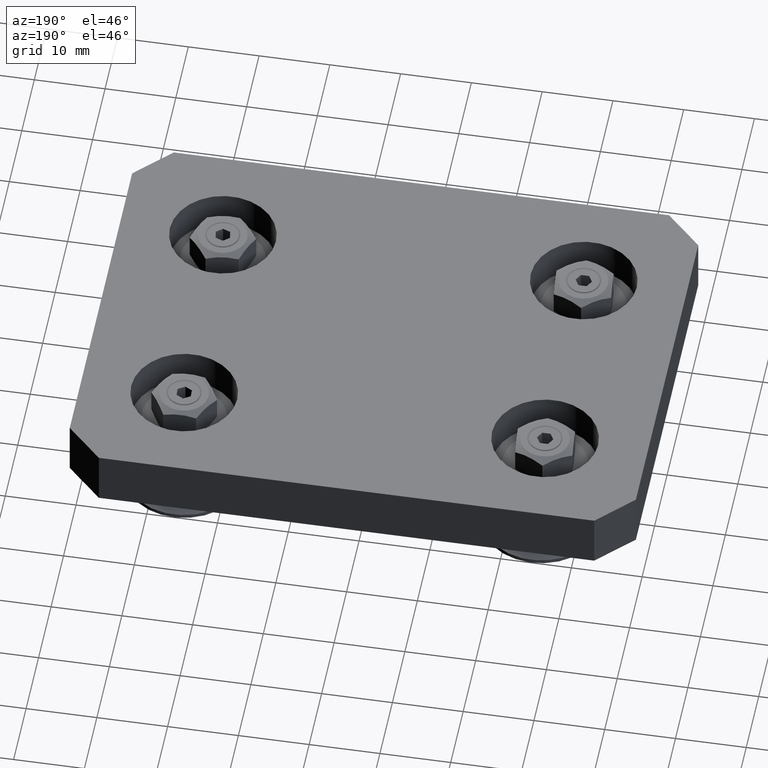
[diagram: clean part render]
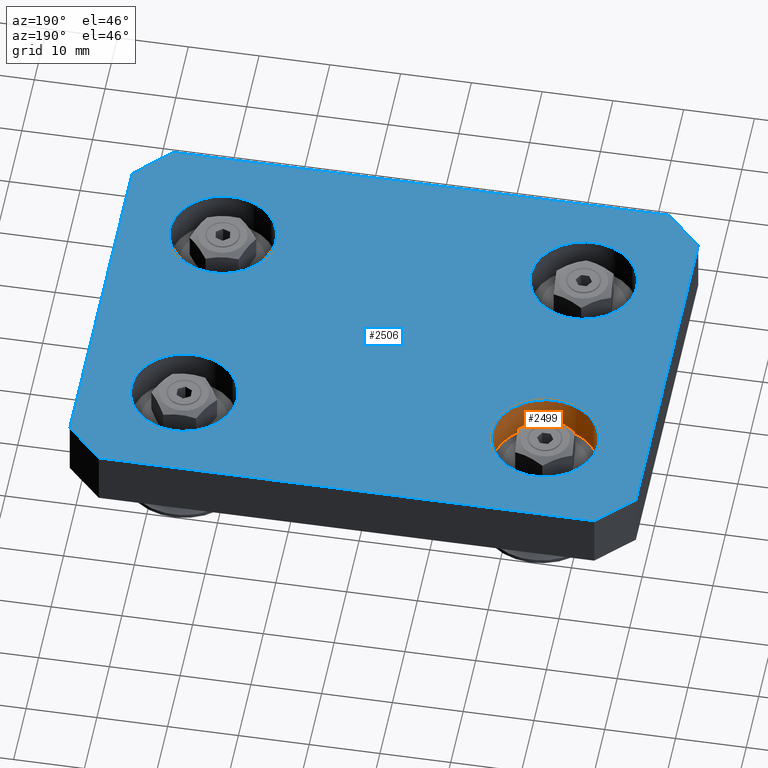
[diagram: same view with the hole feature highlighted: cylindrical wall and planar end face, labeled with their STEP entity ids]
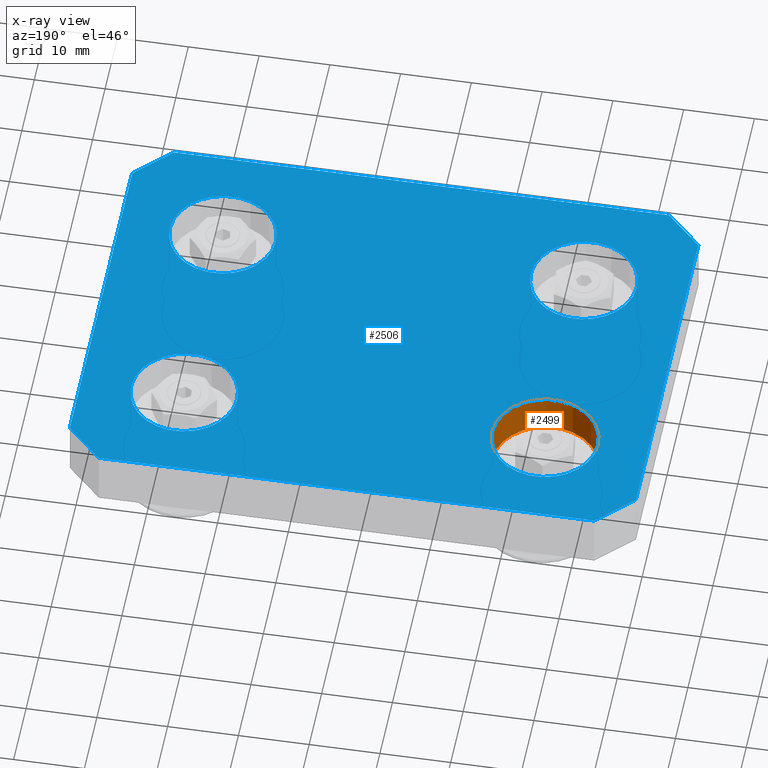
[diagram: x-ray of the same camera — body ghosted, the hole faces saturated]
A machine part, auxiliary view. The highlighted faces form one hole feature of diameter 15 mm: the cylindrical wall (entity #2499, orange) and its adjacent planar end face (entity #2506, blue) — they share a circular edge in the B-rep.
The next image is the same camera in x-ray (body ghosted, the hole faces saturated) — the bore reads through the body.
Wall:
#136=CYLINDRICAL_SURFACE('',#2874,7.5);
#216=CIRCLE('',#2872,7.5);
#218=CIRCLE('',#2875,7.5);
#354=FACE_OUTER_BOUND('',#520,.T.);
#520=EDGE_LOOP('',(#1741,#1742,#1743,#1744));
#714=LINE('',#4093,#922);
#922=VECTOR('',#3250,7.5);
#1130=VERTEX_POINT('',#4086);
#1132=VERTEX_POINT('',#4091);
#1365=EDGE_CURVE('',#1130,#1130,#216,.T.);
#1367=EDGE_CURVE('',#1132,#1132,#218,.T.);
#1368=EDGE_CURVE('',#1132,#1130,#714,.T.);
#1741=ORIENTED_EDGE('',*,*,#1367,.F.);
#1742=ORIENTED_EDGE('',*,*,#1368,.T.);
#1743=ORIENTED_EDGE('',*,*,#1365,.F.);
#1744=ORIENTED_EDGE('',*,*,#1368,.F.);
#2499=ADVANCED_FACE('',(#354),#136,.F.);
#2872=AXIS2_PLACEMENT_3D('',#4087,#3242,#3243);
#2874=AXIS2_PLACEMENT_3D('',#4090,#3246,#3247);
#2875=AXIS2_PLACEMENT_3D('',#4092,#3248,#3249);
#3242=DIRECTION('center_axis',(0.,0.,1.));
#3243=DIRECTION('ref_axis',(1.,0.,0.));
#3246=DIRECTION('center_axis',(0.,0.,1.));
#3247=DIRECTION('ref_axis',(1.,0.,0.));
#3248=DIRECTION('center_axis',(0.,0.,-1.));
#3249=DIRECTION('ref_axis',(1.,0.,0.));
#3250=DIRECTION('',(0.,0.,-1.));
#4086=CARTESIAN_POINT('',(-33.,15.5,2.5));
#4087=CARTESIAN_POINT('Origin',(-25.5,15.5,2.5));
#4090=CARTESIAN_POINT('Origin',(-25.5,15.5,5.25));
#4091=CARTESIAN_POINT('',(-33.,15.5,8.));
#4092=CARTESIAN_POINT('Origin',(-25.5,15.5,8.));
#4093=CARTESIAN_POINT('',(-33.,15.5,5.25));
End face:
#184=FACE_BOUND('',#529,.T.);
#185=FACE_BOUND('',#530,.T.);
#186=FACE_BOUND('',#531,.T.);
#187=FACE_BOUND('',#532,.T.);
#212=CIRCLE('',#2863,7.5);
#215=CIRCLE('',#2869,7.5);
#218=CIRCLE('',#2875,7.5);
#221=CIRCLE('',#2881,7.5);
#361=FACE_OUTER_BOUND('',#528,.T.);
#528=EDGE_LOOP('',(#1767,#1768,#1769,#1770,#1771,#1772,#1773,#1774));
#529=EDGE_LOOP('',(#1775));
#530=EDGE_LOOP('',(#1776));
#531=EDGE_LOOP('',(#1777));
#532=EDGE_LOOP('',(#1778));
#688=LINE('',#4013,#896);
#699=LINE('',#4043,#907);
#701=LINE('',#4047,#909);
#703=LINE('',#4052,#911);
#707=LINE('',#4058,#915);
#708=LINE('',#4061,#916);
#718=LINE('',#4108,#926);
#719=LINE('',#4110,#927);
#896=VECTOR('',#3170,10.);
#907=VECTOR('',#3193,10.);
#909=VECTOR('',#3197,10.);
#911=VECTOR('',#3201,10.);
#915=VECTOR('',#3207,10.);
#916=VECTOR('',#3210,10.);
#926=VECTOR('',#3270,10.);
#927=VECTOR('',#3273,10.);
#1104=VERTEX_POINT('',#4011);
#1105=VERTEX_POINT('',#4012);
#1118=VERTEX_POINT('',#4042);
#1119=VERTEX_POINT('',#4046);
#1120=VERTEX_POINT('',#4050);
#1121=VERTEX_POINT('',#4051);
#1122=VERTEX_POINT('',#4056);
#1123=VERTEX_POINT('',#4060);
#1126=VERTEX_POINT('',#4069);
#1129=VERTEX_POINT('',#4080);
#1132=VERTEX_POINT('',#4091);
#1135=VERTEX_POINT('',#4102);
#1329=EDGE_CURVE('',#1104,#1105,#688,.T.);
#1344=EDGE_CURVE('',#1105,#1118,#699,.T.);
#1346=EDGE_CURVE('',#1118,#1119,#701,.T.);
#1348=EDGE_CURVE('',#1120,#1121,#703,.T.);
#1352=EDGE_CURVE('',#1122,#1120,#707,.T.);
#1353=EDGE_CURVE('',#1123,#1122,#708,.T.);
#1357=EDGE_CURVE('',#1126,#1126,#212,.T.);
#1362=EDGE_CURVE('',#1129,#1129,#215,.T.);
#1367=EDGE_CURVE('',#1132,#1132,#218,.T.);
#1372=EDGE_CURVE('',#1135,#1135,#221,.T.);
#1375=EDGE_CURVE('',#1119,#1123,#718,.T.);
#1376=EDGE_CURVE('',#1121,#1104,#719,.T.);
#1767=ORIENTED_EDGE('',*,*,#1329,.F.);
#1768=ORIENTED_EDGE('',*,*,#1376,.F.);
#1769=ORIENTED_EDGE('',*,*,#1348,.F.);
#1770=ORIENTED_EDGE('',*,*,#1352,.F.);
#1771=ORIENTED_EDGE('',*,*,#1353,.F.);
#1772=ORIENTED_EDGE('',*,*,#1375,.F.);
#1773=ORIENTED_EDGE('',*,*,#1346,.F.);
#1774=ORIENTED_EDGE('',*,*,#1344,.F.);
#1775=ORIENTED_EDGE('',*,*,#1357,.T.);
#1776=ORIENTED_EDGE('',*,*,#1362,.T.);
#1777=ORIENTED_EDGE('',*,*,#1367,.T.);
#1778=ORIENTED_EDGE('',*,*,#1372,.T.);
#2404=PLANE('',#2885);
#2506=ADVANCED_FACE('',(#361,#184,#185,#186,#187),#2404,.T.);
#2863=AXIS2_PLACEMENT_3D('',#4070,#3220,#3221);
#2869=AXIS2_PLACEMENT_3D('',#4081,#3234,#3235);
#2875=AXIS2_PLACEMENT_3D('',#4092,#3248,#3249);
#2881=AXIS2_PLACEMENT_3D('',#4103,#3262,#3263);
#2885=AXIS2_PLACEMENT_3D('',#4111,#3274,#3275);
#3170=DIRECTION('',(0.707106781186548,-0.707106781186548,0.));
#3193=DIRECTION('',(0.,-1.,0.));
#3197=DIRECTION('',(-0.707106781186548,-0.707106781186548,0.));
#3201=DIRECTION('',(0.707106781186548,0.707106781186548,0.));
#3207=DIRECTION('',(0.,1.,0.));
#3210=DIRECTION('',(-0.707106781186548,0.707106781186548,0.));
#3220=DIRECTION('center_axis',(0.,0.,-1.));
#3221=DIRECTION('ref_axis',(1.,0.,0.));
#3234=DIRECTION('center_axis',(0.,0.,-1.));
#3235=DIRECTION('ref_axis',(1.,0.,0.));
#3248=DIRECTION('center_axis',(0.,0.,-1.));
#3249=DIRECTION('ref_axis',(1.,0.,0.));
#3262=DIRECTION('center_axis',(0.,0.,-1.));
#3263=DIRECTION('ref_axis',(1.,0.,0.));
#3270=DIRECTION('',(-1.,0.,0.));
#3273=DIRECTION('',(1.,0.,0.));
#3274=DIRECTION('center_axis',(0.,0.,1.));
#3275=DIRECTION('ref_axis',(1.,0.,0.));
#4011=CARTESIAN_POINT('',(35.,30.,8.));
#4012=CARTESIAN_POINT('',(40.,25.,8.));
#4013=CARTESIAN_POINT('',(35.,30.,8.));
#4042=CARTESIAN_POINT('',(40.,-25.,8.));
#4043=CARTESIAN_POINT('',(40.,30.,8.));
#4046=CARTESIAN_POINT('',(35.,-30.,8.));
#4047=CARTESIAN_POINT('',(35.,-30.,8.));
#4050=CARTESIAN_POINT('',(-40.,25.,8.));
#4051=CARTESIAN_POINT('',(-35.,30.,8.));
#4052=CARTESIAN_POINT('',(-35.,30.,8.));
#4056=CARTESIAN_POINT('',(-40.,-25.,8.));
#4058=CARTESIAN_POINT('',(-40.,-30.,8.));
#4060=CARTESIAN_POINT('',(-35.,-30.,8.));
#4061=CARTESIAN_POINT('',(-35.,-30.,8.));
#4069=CARTESIAN_POINT('',(18.,-15.5,8.));
#4070=CARTESIAN_POINT('Origin',(25.5,-15.5,8.));
#4080=CARTESIAN_POINT('',(18.,15.5,8.));
#4081=CARTESIAN_POINT('Origin',(25.5,15.5,8.));
#4091=CARTESIAN_POINT('',(-33.,15.5,8.));
#4092=CARTESIAN_POINT('Origin',(-25.5,15.5,8.));
#4102=CARTESIAN_POINT('',(-33.,-15.5,8.));
#4103=CARTESIAN_POINT('Origin',(-25.5,-15.5,8.));
#4108=CARTESIAN_POINT('',(40.,-30.,8.));
#4110=CARTESIAN_POINT('',(-40.,30.,8.));
#4111=CARTESIAN_POINT('Origin',(0.,1.73021770071453E-16,8.));